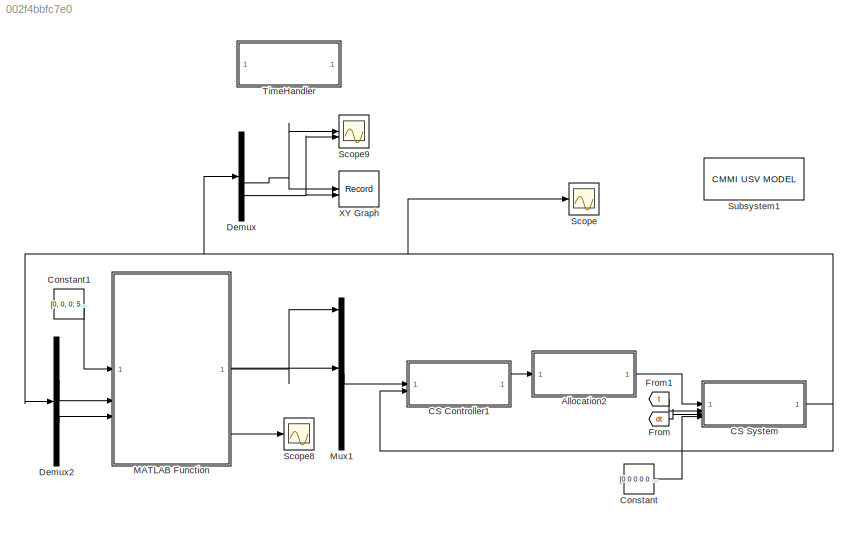
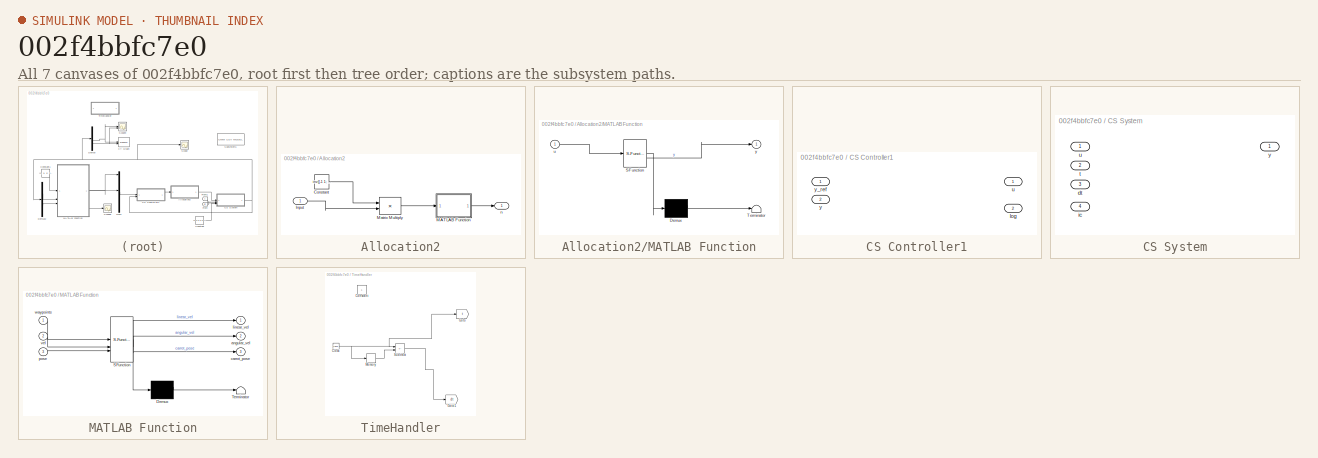
[diagram: thumbnail index - all 7 canvases of the model, root first then tree order]
MODEL slx_002f4bbfc7e0
KIND model
CONFIG AbsTol = auto
CONFIG EnableMultiTasking = off
CONFIG FixedStep = 0.05
CONFIG MaxStep = auto
CONFIG MinStep = auto
CONFIG RelTol = 1e-3
CONFIG SampleTimeConstraint = Unconstrained
CONFIG SolverName = FixedStepAuto
CONFIG StartTime = 0.0
CONFIG StopTime = 200
BLOCK [SubSystem] Allocation2
BLOCK [Constant] Allocation2/Constant
  Value = inv([-1 1; 1 1])
BLOCK [Inport] Allocation2/Input
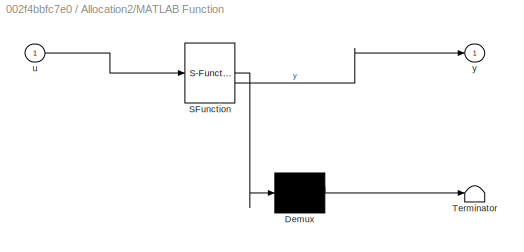
BLOCK [SubSystem] Allocation2/MATLAB Function
  ErrorFcn = Stateflow.Translate.translate
  PermitHierarchicalResolution = ExplicitOnly
  SFBlockType = MATLAB Function
  TreatAsAtomicUnit = on
BLOCK [Demux] Allocation2/MATLAB Function/ Demux 
  Outputs = 1
BLOCK [S-Function] Allocation2/MATLAB Function/ SFunction 
  EnableBusSupport = on
  FunctionName = sf_sfun
  PortCounts = [1 2]
  SFcnIsStateOwnerBlock = off
  SFunctionDeploymentMode = off
  Tag = Stateflow S-Function 4
BLOCK [Terminator] Allocation2/MATLAB Function/ Terminator 
BLOCK [Inport] Allocation2/MATLAB Function/u
BLOCK [Outport] Allocation2/MATLAB Function/y
BLOCK [Product] Allocation2/Matrix Multiply
  Multiplication = Matrix(*)
BLOCK [Outport] Allocation2/n
BLOCK [SubSystem] CS Controller1
  Tag = __cs_template;__cs_comptype:ctl
BLOCK [Outport] CS Controller1/log
  Port = 2
BLOCK [Outport] CS Controller1/u
BLOCK [Inport] CS Controller1/y
  Port = 2
BLOCK [Inport] CS Controller1/y_ref
BLOCK [SubSystem] CS System
  Tag = __cs_template;__cs_comptype:sys
BLOCK [Inport] CS System/dt
  Port = 3
BLOCK [Inport] CS System/ic
  Port = 4
BLOCK [Inport] CS System/t
  Port = 2
BLOCK [Inport] CS System/u
BLOCK [Outport] CS System/y
BLOCK [Constant] Constant
  Value = [0 0 0 0 0 0 0 0 0 0 0 0]'
BLOCK [Constant] Constant1
  Value = [0, 0, 0; 50, 0, 0; 50 50, 0; 0, 50, 0; 10, 10, 0]
BLOCK [Demux] Demux
  Outputs = 6
BLOCK [Demux] Demux2
  Outputs = 2
BLOCK [From] From
  GotoTag = dt
  TagVisibility = global
BLOCK [From] From1
  GotoTag = t
  TagVisibility = global
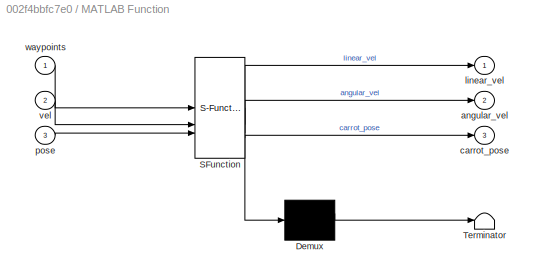
BLOCK [SubSystem] MATLAB Function
  ErrorFcn = Stateflow.Translate.translate
  PermitHierarchicalResolution = ExplicitOnly
  SFBlockType = MATLAB Function
  TreatAsAtomicUnit = on
BLOCK [Demux] MATLAB Function/ Demux 
  Outputs = 1
BLOCK [S-Function] MATLAB Function/ SFunction 
  EnableBusSupport = on
  FunctionName = sf_sfun
  Parameters = params
  PortCounts = [3 4]
  SFcnIsStateOwnerBlock = off
  SFunctionDeploymentMode = off
  Tag = Stateflow S-Function 2
BLOCK [Terminator] MATLAB Function/ Terminator 
BLOCK [Outport] MATLAB Function/angular_vel
  Port = 2
BLOCK [Outport] MATLAB Function/carrot_pose
  Port = 3
BLOCK [Outport] MATLAB Function/linear_vel
BLOCK [Inport] MATLAB Function/pose
  Port = 3
BLOCK [Inport] MATLAB Function/vel
  Port = 2
BLOCK [Inport] MATLAB Function/waypoints
BLOCK [Mux] Mux1
  DisplayOption = bar
  Inputs = 12
BLOCK [Scope] Scope
  Floating = off
  NumInputPorts = 1
  ScopeSpecificationString = Simulink.scopes.TimeScopeBlockCfg('CurrentConfiguration', extmgr.ConfigurationSet(extmgr.Configuration('Core','General UI',true),extmgr.Configuration('Core','Source UI',true),extmgr.Configuration('Sources','WiredSimulink',true),extmgr.Configuration('Visuals','Time Domain',true,'SerializedDisplays',{struct('MinYLimReal','-9.90913','MaxYLimReal','13.63304','YLabelReal','','MinYLimMag','0.00000','Max...<+1599ch>
BLOCK [Scope] Scope8
  Floating = off
  NumInputPorts = 1
  ScopeSpecificationString = Simulink.scopes.TimeScopeBlockCfg('CurrentConfiguration', extmgr.ConfigurationSet(extmgr.Configuration('Core','General UI',true),extmgr.Configuration('Core','Source UI',true),extmgr.Configuration('Sources','WiredSimulink',true,'DataLoggingVariableName','ScopeData2'),extmgr.Configuration('Visuals','Time Domain',true,'SerializedDisplays',{struct('MinYLimReal','-1.03846','MaxYLimReal','1.20415','YLab...<+1569ch>
BLOCK [Scope] Scope9
  Floating = off
  NumInputPorts = 2
  ScopeSpecificationString = Simulink.scopes.TimeScopeBlockCfg('CurrentConfiguration', extmgr.ConfigurationSet(extmgr.Configuration('Core','General UI',true),extmgr.Configuration('Core','Source UI',true),extmgr.Configuration('Sources','WiredSimulink',true,'DataLoggingVariableName','ScopeData3'),extmgr.Configuration('Visuals','Time Domain',true,'SerializedDisplays',{struct('MinYLimReal','-11.91646','MaxYLimReal','48.21399','YL...<+1634ch>
BLOCK [Reference] Subsystem1  REF=cmmi_lib/CMMI USV MODEL  (lib defined in slx_36746e0085bf)
  SourceBlock = cmmi_lib/CMMI USV MODEL
  SourceType = SubSystem
BLOCK [SubSystem] TimeHandler
BLOCK [Clock] TimeHandler/Clock
BLOCK [Constant] TimeHandler/Constant
BLOCK [Goto] TimeHandler/Goto
  GotoTag = t
  TagVisibility = global
BLOCK [Goto] TimeHandler/Goto1
  GotoTag = dt
  TagVisibility = global
BLOCK [Memory] TimeHandler/Memory
BLOCK [Sum] TimeHandler/Subtract
  IconShape = rectangular
  Inputs = +-
BLOCK [Record] XY Graph
  CompatibilityTag = XY
  FileSettingsInternal = {"entries":[{"content":{"excelSettings":{"content":{},"type":"Streamout.ExcelSettings"}},"type":"Streamout.FileSettingStorage","uuid":""}],"packageUris":["http:\/\/schema.mathworks.com\/mf0\/streamout_blocks\/R2020a"],"version":"1.0"}
  Layout = [1 1]
  SignalsInternal = {"entries":[{"content":{"signals":[{"content":{"blockPath":[],"dimensions":[1],"domain":"","lineColor":"#0072bd","lineWidth":2,"plots":[ 1 ],"port":1,"signalID":1,"signalName":"Demux:4"},"type":"RecordBlkView.Signal","uuid":""},{"content":{"blockPath":[],"dimensions":[1],"domain":"","lineColor":"#d95319","lineWidth":2,"plots":[ 1 ],"port":2,"signalID":2,"signalName":"Demux:5"},"type":"RecordBlkVie...<+166ch>
  VisualizationBindings = {"xyplotplugin":{"info":[{"series":[{"bindingParametersList":[{"parameter":"X-Axis","signalID":1,"signalName":"Demux:4"},{"parameter":"Y-Axis","signalID":2,"signalName":"Demux:5"}],"seriesID":0}],"subplotID":1}]}}
LINE Allocation2/Constant:1 -> Allocation2/Matrix Multiply:1
LINE Allocation2/Input:1 -> Allocation2/Matrix Multiply:2
LINE Allocation2/MATLAB Function:1 -> Allocation2/n:1
LINE Allocation2/Matrix Multiply:1 -> Allocation2/MATLAB Function:1
LINE Allocation2:1 -> CS System:1
LINE CS Controller1:1 -> Allocation2:1
NET CS System:1 -> CS Controller1:2, Demux2:1, Demux:1, Scope:1
LINE Constant1:1 -> MATLAB Function:1
LINE Constant:1 -> CS System:4
LINE Demux2:1 -> MATLAB Function:2
LINE Demux2:2 -> MATLAB Function:3
NET Demux:4 -> Scope9:1, XY Graph:1
NET Demux:5 -> Scope9:2, XY Graph:2
LINE From1:1 -> CS System:2
LINE From:1 -> CS System:3
LINE MATLAB Function:1 -> Mux1:1
LINE MATLAB Function:2 -> Mux1:6
LINE MATLAB Function:3 -> Scope8:1
LINE Mux1:1 -> CS Controller1:1
NET TimeHandler/Clock:1 -> TimeHandler/Goto:1, TimeHandler/Memory:1, TimeHandler/Subtract:1
LINE TimeHandler/Memory:1 -> TimeHandler/Subtract:2
LINE TimeHandler/Subtract:1 -> TimeHandler/Goto1:1
note: NET lines group one-source signal fan-out (src -> all destinations, sorted); 1:1 wires keep LINE
CHART MATLAB Function states=1 transitions=1
  STATE_LABEL 'eML_blk_kernel()'
  STATE_LABEL 'SCRIPT:\nfunction [linear_vel, angular_vel, carrot_pose] = fcn(waypoints, vel, pose, params)\n\n    persistent global_path idx\n    use_waypoints = 0;\n    num_divs = 100;        \n    if isempty(global_path)\n\n        if use_waypoints\n            global_path = zeros((height(waypoints)-1) * num_divs+1, 3);\n            global_path(1, :) = waypoints(1, :);\n            for i=1:length(waypoints)-1\n          ...<+1251ch>'
CHART Allocation2/MATLAB Function states=1 transitions=1
  STATE_LABEL 'eML_blk_kernel()'
  STATE_LABEL 'SCRIPT:\nfunction y = fcn(u)\n\ny = t200_inv(u);'
CHART  states=0 transitions=0
CHART  states=0 transitions=0
